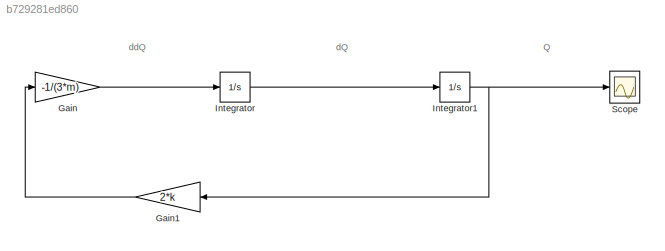
MODEL slx_b729281ed860
KIND model
CONFIG AbsTol = auto
CONFIG EnableMultiTasking = off
CONFIG FixedStep = auto
CONFIG InitFcn = m=10;\nr=0.05;\nk=100;
CONFIG MaxStep = auto
CONFIG MinStep = auto
CONFIG RelTol = 1e-3
CONFIG SampleTimeConstraint = Unconstrained
CONFIG SolverName = VariableStepAuto
CONFIG StartTime = 0.0
CONFIG StopTime = 10.0
BLOCK [Gain] Gain
  Gain = -1/(3*m)
BLOCK [Gain] Gain1
  Gain = 2*k
  NameLocation = top
BLOCK [Integrator] Integrator
  InitialCondition = 2
BLOCK [Integrator] Integrator1
BLOCK [Scope] Scope
  Floating = off
  NumInputPorts = 1
  ScopeSpecificationString = Simulink.scopes.TimeScopeBlockCfg('CurrentConfiguration', extmgr.ConfigurationSet(extmgr.Configuration('Core','General UI',true),extmgr.Configuration('Core','Source UI',true),extmgr.Configuration('Sources','WiredSimulink',true),extmgr.Configuration('Visuals','Time Domain',true,'SerializedDisplays',{struct('MinYLimReal','-0.9676','MaxYLimReal','0.96806','YLabelReal','','MinYLimMag','0.00000','MaxYL...<+1451ch>
ANNOTATION (root): Q
ANNOTATION (root): dQ
ANNOTATION (root): ddQ
LINE Gain1:1 -> Gain:1
LINE Gain:1 -> Integrator:1
NET Integrator1:1 -> Gain1:1, Scope:1
LINE Integrator:1 -> Integrator1:1
note: NET lines group one-source signal fan-out (src -> all destinations, sorted); 1:1 wires keep LINE
